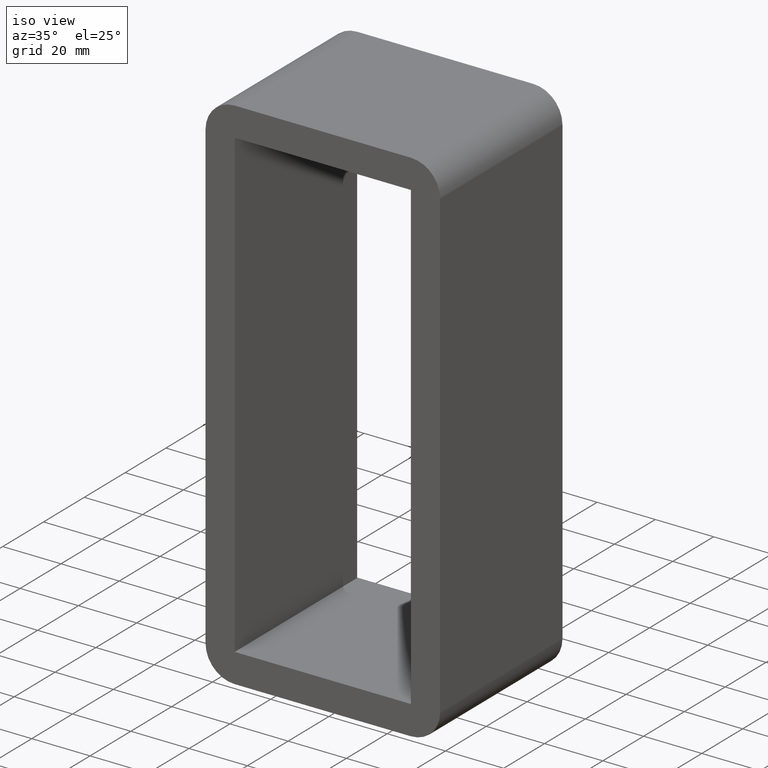
[diagram: clean part render]
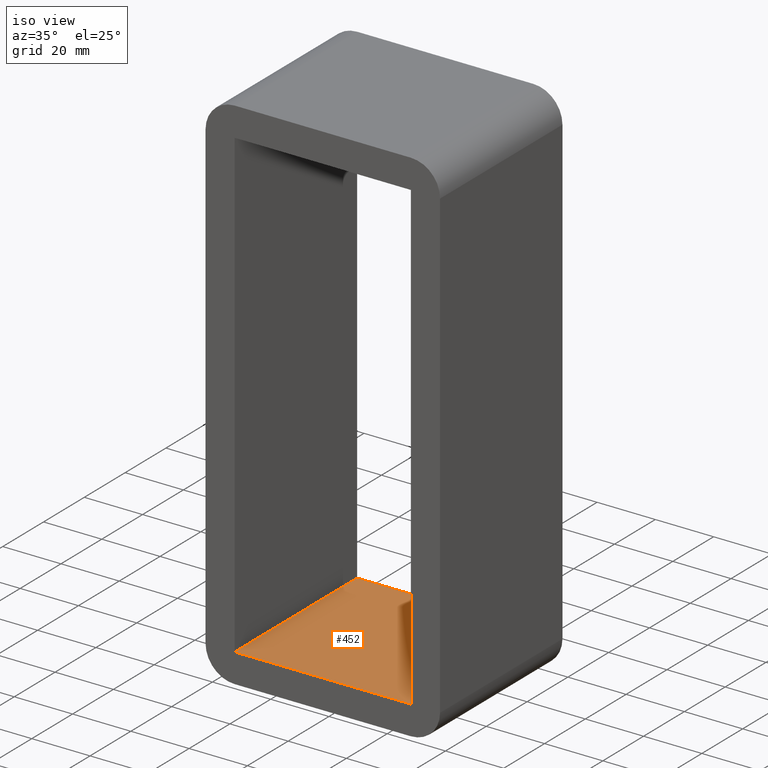
[diagram: same view with one face highlighted and labeled with its STEP entity id]
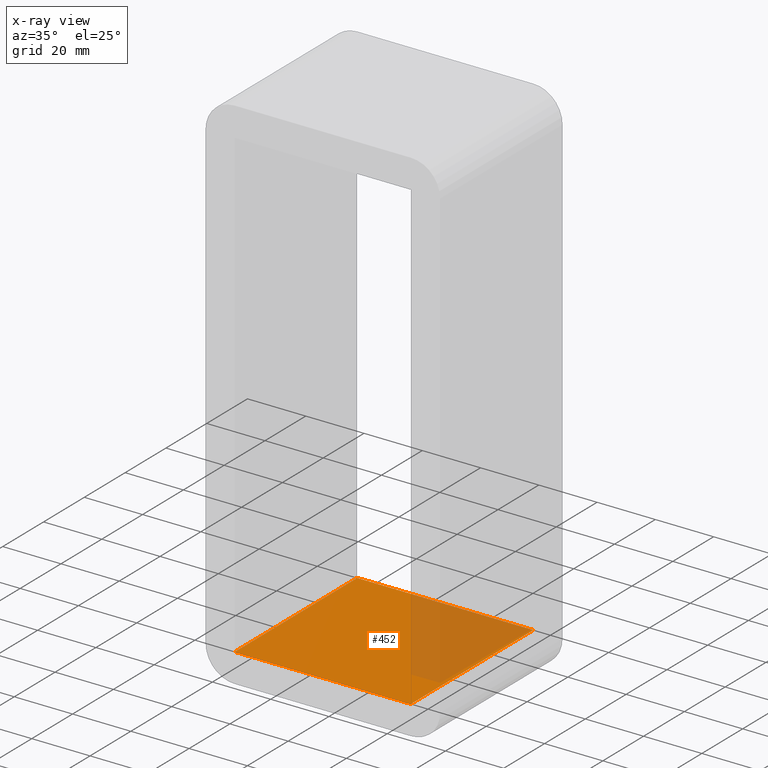
[diagram: x-ray of the same camera — body ghosted, the highlighted face saturated]
A machine part, iso view. The second image highlights one B-rep face of the part: STEP entity #452.
The next image is the same camera in x-ray: the body ghosted, the highlighted face saturated — about 31% of this face is hidden behind the body in this view.
In plain terms, the highlighted planar face has unit normal (0, 0, -1).
Its self-contained STEP definition (entity closure, byte-faithful):
#177=CARTESIAN_POINT('',(30.250000000000007,-3.0,-79.75));
#178=VERTEX_POINT('',#177);
#185=CARTESIAN_POINT('',(-30.250000000000007,-3.0,-79.75));
#186=VERTEX_POINT('',#185);
#187=CARTESIAN_POINT('',(30.250000000000007,-3.0,-79.75));
#188=DIRECTION('',(-1.0,0.0,0.0));
#189=VECTOR('',#188,60.500000000000021);
#190=LINE('',#187,#189);
#191=EDGE_CURVE('',#178,#186,#190,.T.);
#362=CARTESIAN_POINT('',(30.250000000000007,57.0,-79.75));
#363=VERTEX_POINT('',#362);
#364=CARTESIAN_POINT('',(30.250000000000007,57.0,-79.75));
#365=DIRECTION('',(0.0,-1.0,0.0));
#366=VECTOR('',#365,60.0);
#367=LINE('',#364,#366);
#368=EDGE_CURVE('',#363,#178,#367,.T.);
#419=CARTESIAN_POINT('',(-30.250000000000007,57.0,-79.75));
#420=VERTEX_POINT('',#419);
#421=CARTESIAN_POINT('',(-30.250000000000007,-3.0,-79.75));
#422=DIRECTION('',(0.0,1.0,0.0));
#423=VECTOR('',#422,60.0);
#424=LINE('',#421,#423);
#425=EDGE_CURVE('',#186,#420,#424,.T.);
#436=CARTESIAN_POINT('',(30.250000000000007,0.0,-79.75));
#437=DIRECTION('',(0.0,0.0,-1.0));
#438=DIRECTION('',(-1.0,0.0,0.0));
#439=AXIS2_PLACEMENT_3D('',#436,#437,#438);
#440=PLANE('',#439);
#441=ORIENTED_EDGE('',*,*,#425,.F.);
#442=ORIENTED_EDGE('',*,*,#191,.F.);
#443=ORIENTED_EDGE('',*,*,#368,.F.);
#444=CARTESIAN_POINT('',(-30.250000000000014,57.0,-79.75));
#445=DIRECTION('',(1.0,0.0,0.0));
#446=VECTOR('',#445,60.500000000000021);
#447=LINE('',#444,#446);
#448=EDGE_CURVE('',#420,#363,#447,.T.);
#449=ORIENTED_EDGE('',*,*,#448,.F.);
#450=EDGE_LOOP('',(#441,#442,#443,#449));
#451=FACE_OUTER_BOUND('',#450,.T.);
#452=ADVANCED_FACE('',(#451),#440,.F.);